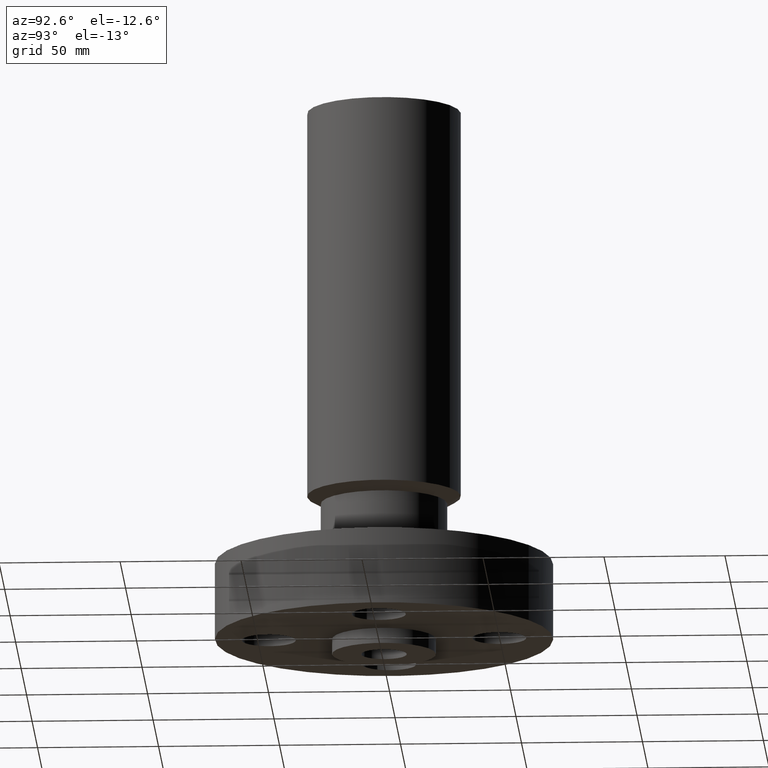
[diagram: clean part render]
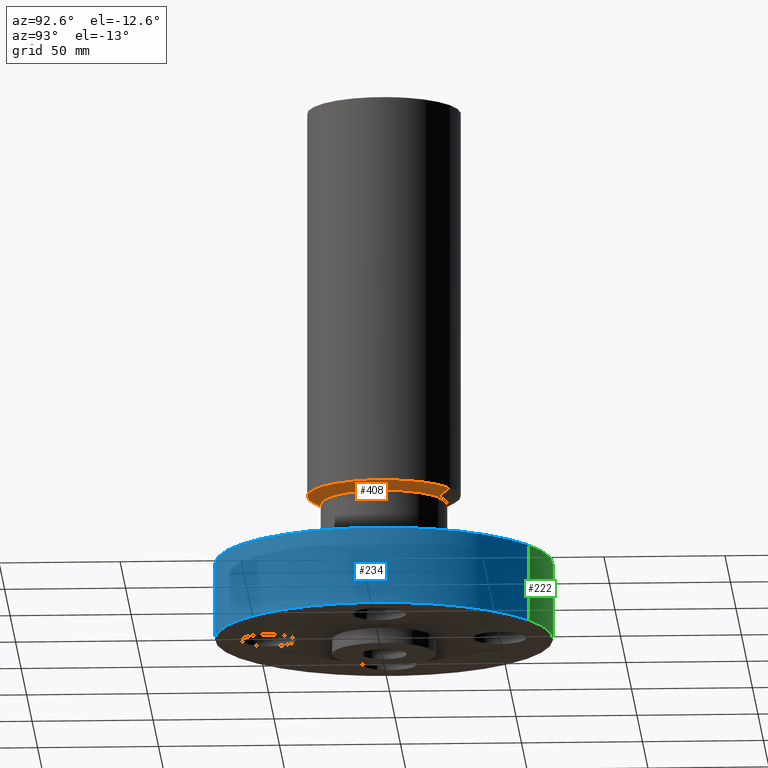
[diagram: same view with three faces highlighted in distinct colors, each labeled with its STEP entity id]
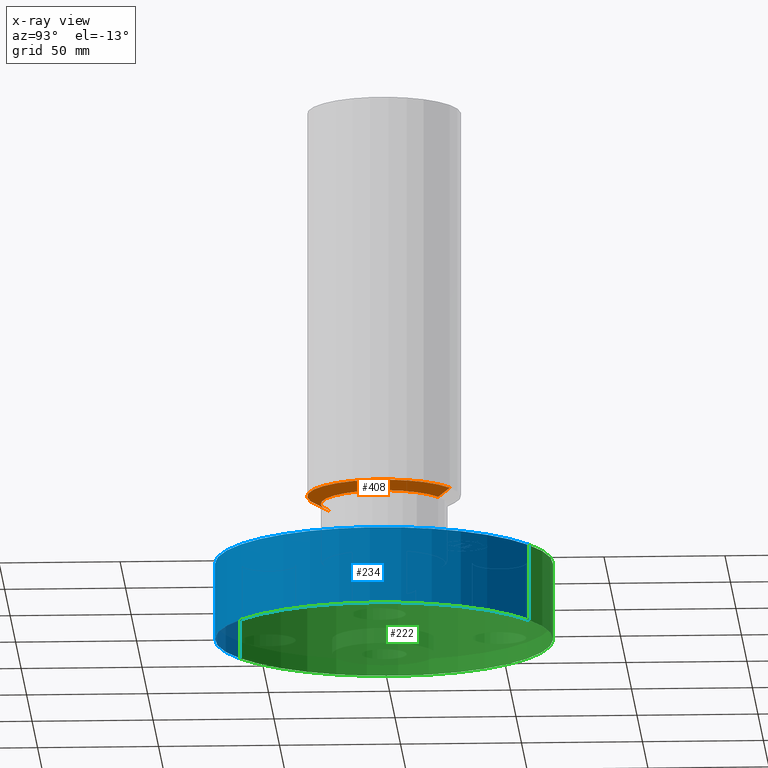
[diagram: x-ray of the same camera — body ghosted, the three highlighted faces saturated]
A machine part, auxiliary view with three faces highlighted in distinct colors.
The next image is the same camera in x-ray (body ghosted, the three faces saturated) — at least one of them is partly hidden behind the body in this view.
Their STEP definitions:

[orange] entity #408 — the highlighted conical surface has half-angle 60 deg.
#349=AXIS2_PLACEMENT_3D('Circle Axis2P3D',#347,#348,$) ;
#381=AXIS2_PLACEMENT_3D('Cone Axis2P3D',#378,#379,#380) ;
#392=AXIS2_PLACEMENT_3D('Circle Axis2P3D',#390,#391,$) ;
#344=CARTESIAN_POINT('Vertex',(0.493808304764,0.903910038751,2.25000000001)) ;
#347=CARTESIAN_POINT('Axis2P3D Location',(0.,0.,2.25000000001)) ;
#351=CARTESIAN_POINT('Vertex',(-0.493808304764,-0.903910038751,2.25000000001)) ;
#378=CARTESIAN_POINT('Axis2P3D Location',(0.,0.,2.25000000001)) ;
#383=CARTESIAN_POINT('Line Origine',(0.546545114011,1.00044412056,2.31350852962)) ;
#387=CARTESIAN_POINT('Vertex',(0.599281923258,1.09697820237,2.37701705923)) ;
#390=CARTESIAN_POINT('Axis2P3D Location',(0.,0.,2.37701705923)) ;
#394=CARTESIAN_POINT('Vertex',(-0.599281923258,-1.09697820237,2.37701705923)) ;
#397=CARTESIAN_POINT('Line Origine',(-0.546545114011,-1.00044412056,2.31350852962)) ;
#348=DIRECTION('Axis2P3D Direction',(0.,0.,-0.0393700787402)) ;
#379=DIRECTION('Axis2P3D Direction',(-0.,-0.,0.0393700787402)) ;
#380=DIRECTION('Axis2P3D XDirection',(0.0188750212049,0.0345504945626,0.)) ;
#384=DIRECTION('Vector Direction',(0.0163462478604,0.0299216060045,0.0196850393701)) ;
#391=DIRECTION('Axis2P3D Direction',(-0.,0.,0.0393700787402)) ;
#398=DIRECTION('Vector Direction',(-0.0163462478604,-0.0299216060045,0.0196850393701)) ;
#385=VECTOR('Line Direction',#384,0.0393700787402) ;
#399=VECTOR('Line Direction',#398,0.0393700787402) ;
#403=ORIENTED_EDGE('',*,*,#353,.F.) ;
#404=ORIENTED_EDGE('',*,*,#389,.T.) ;
#405=ORIENTED_EDGE('',*,*,#396,.T.) ;
#406=ORIENTED_EDGE('',*,*,#401,.F.) ;
#408=ADVANCED_FACE('PartBody',(#407),#382,.T.) ;
#350=CIRCLE('generated circle',#349,1.03) ;
#393=CIRCLE('generated circle',#392,1.25000000001) ;
#382=CONICAL_SURFACE('Cone',#381,1.03,1.0471975512) ;
#353=EDGE_CURVE('',#345,#352,#350,.T.) ;
#389=EDGE_CURVE('',#345,#388,#386,.T.) ;
#396=EDGE_CURVE('',#388,#395,#393,.F.) ;
#401=EDGE_CURVE('',#352,#395,#400,.T.) ;
#402=EDGE_LOOP('',(#403,#404,#405,#406)) ;
#407=FACE_OUTER_BOUND('',#402,.T.) ;
#386=LINE('Line',#383,#385) ;
#400=LINE('Line',#397,#399) ;
#345=VERTEX_POINT('',#344) ;
#352=VERTEX_POINT('',#351) ;
#388=VERTEX_POINT('',#387) ;
#395=VERTEX_POINT('',#394) ;

[blue] entity #234 — the highlighted cylindrical surface (partial cylindrical patch) has radius 69.85 mm, axis along (0, 0, -1).
#91=AXIS2_PLACEMENT_3D('Circle Axis2P3D',#89,#90,$) ;
#195=AXIS2_PLACEMENT_3D('Cylinder Axis2P3D',#192,#193,#194) ;
#225=AXIS2_PLACEMENT_3D('Circle Axis2P3D',#223,#224,$) ;
#84=CARTESIAN_POINT('Vertex',(-1.31842023117,-2.41335204521,5.59482469102E-016)) ;
#86=CARTESIAN_POINT('Vertex',(1.31842023117,2.41335204521,5.59482469102E-016)) ;
#89=CARTESIAN_POINT('Axis2P3D Location',(0.,0.,0.)) ;
#192=CARTESIAN_POINT('Axis2P3D Location',(0.,0.,4.25000000002)) ;
#197=CARTESIAN_POINT('Line Origine',(-1.31842023117,-2.41335204521,0.625000000003)) ;
#201=CARTESIAN_POINT('Vertex',(-1.31842023117,-2.41335204521,1.25)) ;
#208=CARTESIAN_POINT('Vertex',(1.31842023117,2.41335204521,1.25)) ;
#211=CARTESIAN_POINT('Line Origine',(1.31842023117,2.41335204521,0.625000000003)) ;
#223=CARTESIAN_POINT('Axis2P3D Location',(0.,0.,1.25)) ;
#90=DIRECTION('Axis2P3D Direction',(0.,0.,-0.0393700787402)) ;
#193=DIRECTION('Axis2P3D Direction',(0.,0.,-0.0393700787402)) ;
#194=DIRECTION('Axis2P3D XDirection',(0.0188750212049,0.0345504945626,0.)) ;
#198=DIRECTION('Vector Direction',(0.,0.,-0.0393700787402)) ;
#212=DIRECTION('Vector Direction',(0.,0.,-0.0393700787402)) ;
#224=DIRECTION('Axis2P3D Direction',(0.,0.,-0.0393700787402)) ;
#199=VECTOR('Line Direction',#198,0.0393700787402) ;
#213=VECTOR('Line Direction',#212,0.0393700787402) ;
#229=ORIENTED_EDGE('',*,*,#93,.F.) ;
#230=ORIENTED_EDGE('',*,*,#215,.T.) ;
#231=ORIENTED_EDGE('',*,*,#227,.T.) ;
#232=ORIENTED_EDGE('',*,*,#203,.F.) ;
#234=ADVANCED_FACE('PartBody',(#233),#196,.T.) ;
#92=CIRCLE('generated circle',#91,2.75000000001) ;
#226=CIRCLE('generated circle',#225,2.75000000001) ;
#196=CYLINDRICAL_SURFACE('generated cylinder',#195,2.75000000001) ;
#93=EDGE_CURVE('',#87,#85,#92,.T.) ;
#203=EDGE_CURVE('',#85,#202,#200,.F.) ;
#215=EDGE_CURVE('',#87,#209,#214,.F.) ;
#227=EDGE_CURVE('',#209,#202,#226,.T.) ;
#228=EDGE_LOOP('',(#229,#230,#231,#232)) ;
#233=FACE_OUTER_BOUND('',#228,.T.) ;
#200=LINE('Line',#197,#199) ;
#214=LINE('Line',#211,#213) ;
#85=VERTEX_POINT('',#84) ;
#87=VERTEX_POINT('',#86) ;
#202=VERTEX_POINT('',#201) ;
#209=VERTEX_POINT('',#208) ;

[green] entity #222 — the highlighted cylindrical surface (partial cylindrical patch) has radius 69.85 mm, axis along (0, 0, -1).
#82=AXIS2_PLACEMENT_3D('Circle Axis2P3D',#80,#81,$) ;
#195=AXIS2_PLACEMENT_3D('Cylinder Axis2P3D',#192,#193,#194) ;
#206=AXIS2_PLACEMENT_3D('Circle Axis2P3D',#204,#205,$) ;
#80=CARTESIAN_POINT('Axis2P3D Location',(0.,0.,0.)) ;
#84=CARTESIAN_POINT('Vertex',(-1.31842023117,-2.41335204521,5.59482469102E-016)) ;
#86=CARTESIAN_POINT('Vertex',(1.31842023117,2.41335204521,5.59482469102E-016)) ;
#192=CARTESIAN_POINT('Axis2P3D Location',(0.,0.,4.25000000002)) ;
#197=CARTESIAN_POINT('Line Origine',(-1.31842023117,-2.41335204521,0.625000000003)) ;
#201=CARTESIAN_POINT('Vertex',(-1.31842023117,-2.41335204521,1.25)) ;
#204=CARTESIAN_POINT('Axis2P3D Location',(0.,0.,1.25)) ;
#208=CARTESIAN_POINT('Vertex',(1.31842023117,2.41335204521,1.25)) ;
#211=CARTESIAN_POINT('Line Origine',(1.31842023117,2.41335204521,0.625000000003)) ;
#81=DIRECTION('Axis2P3D Direction',(0.,0.,-0.0393700787402)) ;
#193=DIRECTION('Axis2P3D Direction',(0.,0.,-0.0393700787402)) ;
#194=DIRECTION('Axis2P3D XDirection',(0.0188750212049,0.0345504945626,0.)) ;
#198=DIRECTION('Vector Direction',(0.,0.,-0.0393700787402)) ;
#205=DIRECTION('Axis2P3D Direction',(0.,0.,-0.0393700787402)) ;
#212=DIRECTION('Vector Direction',(0.,0.,-0.0393700787402)) ;
#199=VECTOR('Line Direction',#198,0.0393700787402) ;
#213=VECTOR('Line Direction',#212,0.0393700787402) ;
#217=ORIENTED_EDGE('',*,*,#88,.F.) ;
#218=ORIENTED_EDGE('',*,*,#203,.T.) ;
#219=ORIENTED_EDGE('',*,*,#210,.T.) ;
#220=ORIENTED_EDGE('',*,*,#215,.F.) ;
#222=ADVANCED_FACE('PartBody',(#221),#196,.T.) ;
#83=CIRCLE('generated circle',#82,2.75000000001) ;
#207=CIRCLE('generated circle',#206,2.75000000001) ;
#196=CYLINDRICAL_SURFACE('generated cylinder',#195,2.75000000001) ;
#88=EDGE_CURVE('',#85,#87,#83,.T.) ;
#203=EDGE_CURVE('',#85,#202,#200,.F.) ;
#210=EDGE_CURVE('',#202,#209,#207,.T.) ;
#215=EDGE_CURVE('',#87,#209,#214,.F.) ;
#216=EDGE_LOOP('',(#217,#218,#219,#220)) ;
#221=FACE_OUTER_BOUND('',#216,.T.) ;
#200=LINE('Line',#197,#199) ;
#214=LINE('Line',#211,#213) ;
#85=VERTEX_POINT('',#84) ;
#87=VERTEX_POINT('',#86) ;
#202=VERTEX_POINT('',#201) ;
#209=VERTEX_POINT('',#208) ;